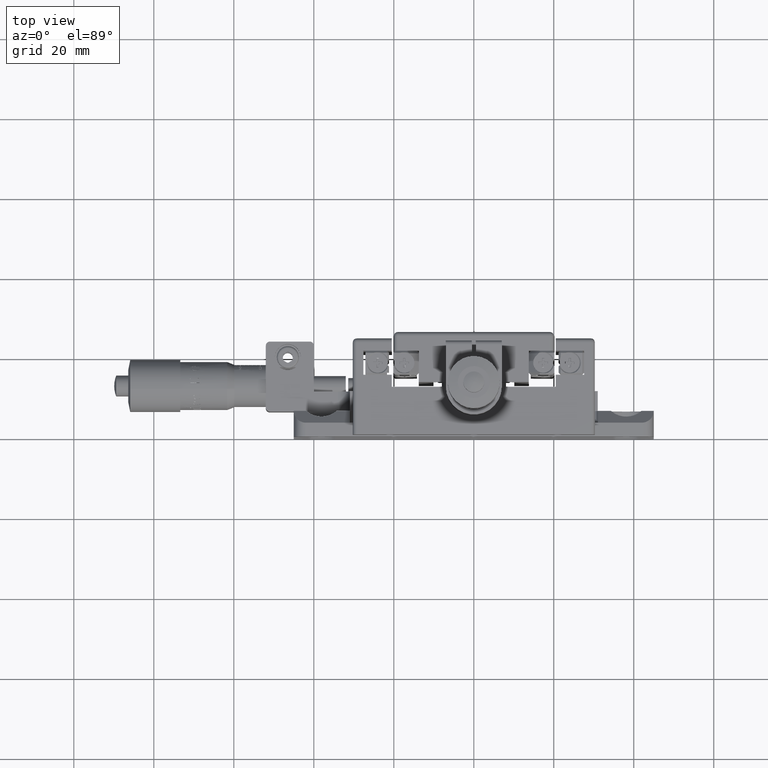
[diagram: clean part render]
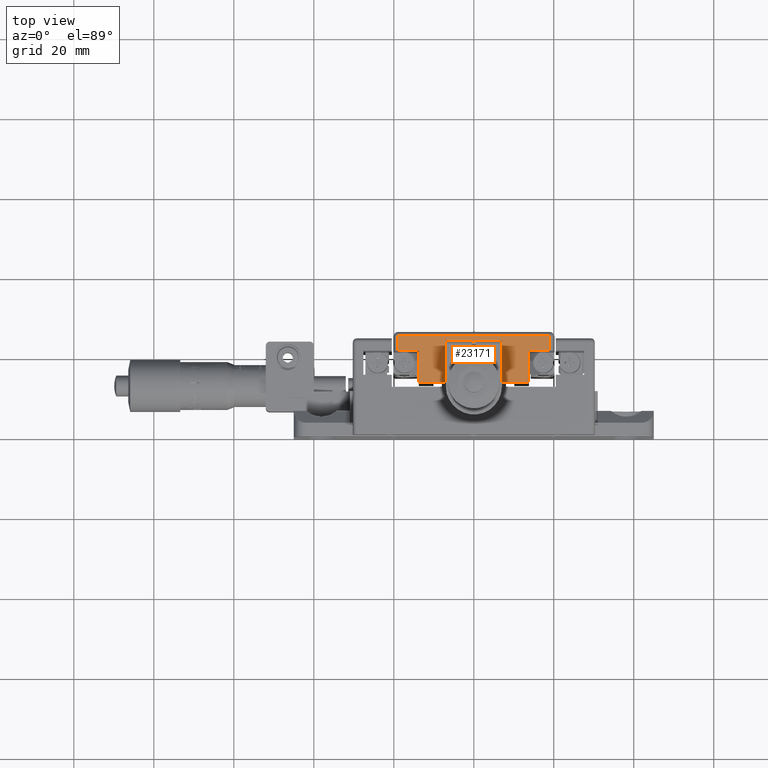
[diagram: same view with one face highlighted and labeled with its STEP entity id]
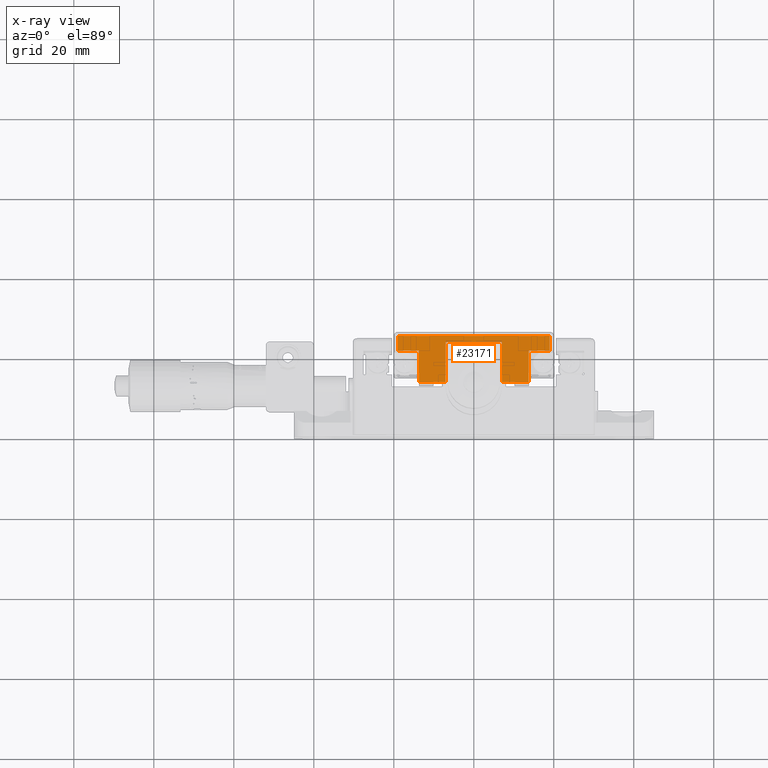
[diagram: x-ray of the same camera — body ghosted, the highlighted face saturated]
A machine part, top view. The second image highlights one B-rep face of the part: STEP entity #23171.
The next image is the same camera in x-ray: the body ghosted, the highlighted face saturated — about 2% of this face is hidden behind the body in this view.
In plain terms, the highlighted planar face has unit normal (-0, 0, 1).
Its self-contained STEP definition (entity closure, byte-faithful):
#327 = EDGE_CURVE ( 'NONE', #64005, #33547, #25366, .T. ) ;
#1150 = CARTESIAN_POINT ( 'NONE',  ( 13.74999999999855900, 13.29999999999909100, 29.99999999999989300 ) ) ;
#2035 = EDGE_CURVE ( 'NONE', #18347, #7997, #43932, .T. ) ;
#2595 = DIRECTION ( 'NONE',  ( -3.451185471037632100E-015, 1.000000000000000000, -2.538117285788525000E-016 ) ) ;
#3623 = VECTOR ( 'NONE', #54645, 1000.000000000000000 ) ;
#3783 = VECTOR ( 'NONE', #15656, 1000.000000000000000 ) ;
#4036 = VERTEX_POINT ( 'NONE', #44788 ) ;
#5000 = CARTESIAN_POINT ( 'NONE',  ( 18.99999999999843700, 24.79999999999913400, 29.99999999999989300 ) ) ;
#5576 = EDGE_CURVE ( 'NONE', #36141, #13899, #21296, .T. ) ;
#6940 = LINE ( 'NONE', #45011, #61727 ) ;
#7245 = ORIENTED_EDGE ( 'NONE', *, *, #21073, .T. ) ;
#7261 = ORIENTED_EDGE ( 'NONE', *, *, #327, .T. ) ;
#7844 = DIRECTION ( 'NONE',  ( 1.095269239418052400E-014, -1.000000000000000000, 2.538117285788535300E-016 ) ) ;
#7997 = VERTEX_POINT ( 'NONE', #16617 ) ;
#8218 = VECTOR ( 'NONE', #63855, 1000.000000000000000 ) ;
#8715 = LINE ( 'NONE', #12728, #36890 ) ;
#8832 = VECTOR ( 'NONE', #53051, 1000.000000000000000 ) ;
#10348 = DIRECTION ( 'NONE',  ( -1.000000000000000000, -1.559082724034155700E-014, -1.387778780781367000E-016 ) ) ;
#11009 = ORIENTED_EDGE ( 'NONE', *, *, #65927, .T. ) ;
#11054 = EDGE_CURVE ( 'NONE', #16220, #43075, #23254, .T. ) ;
#12165 = CARTESIAN_POINT ( 'NONE',  ( 6.999999999998401300, 23.29999999999894600, 29.99999999999989000 ) ) ;
#12728 = CARTESIAN_POINT ( 'NONE',  ( -7.000000000001419300, 11.79999999999872500, 29.99999999999989300 ) ) ;
#12920 = DIRECTION ( 'NONE',  ( -1.000000000000000000, -1.633876696219429300E-014, -1.387778780781364800E-016 ) ) ;
#13733 = EDGE_CURVE ( 'NONE', #16220, #54411, #41518, .T. ) ;
#13899 = VERTEX_POINT ( 'NONE', #59533 ) ;
#14229 = VERTEX_POINT ( 'NONE', #25616 ) ;
#14321 = EDGE_LOOP ( 'NONE', ( #17358, #66578, #7261, #18761, #7245, #21005, #51306, #42517, #48671, #36157, #37001, #11009 ) ) ;
#14738 = CARTESIAN_POINT ( 'NONE',  ( 6.999999999998401300, 23.29999999999894600, 29.99999999999989000 ) ) ;
#15656 = DIRECTION ( 'NONE',  ( -1.608593511242098500E-014, 1.000000000000000000, -2.538117285788542200E-016 ) ) ;
#15927 = AXIS2_PLACEMENT_3D ( 'NONE', #5000, #42042, #10348 ) ;
#16220 = VERTEX_POINT ( 'NONE', #19247 ) ;
#16504 = EDGE_CURVE ( 'NONE', #43075, #52046, #17744, .T. ) ;
#16617 = CARTESIAN_POINT ( 'NONE',  ( 18.99999999999844400, 21.09999999999912000, 29.99999999999989300 ) ) ;
#16671 = CARTESIAN_POINT ( 'NONE',  ( 19.99999999999844700, 21.09999999999913500, 29.99999999999989300 ) ) ;
#17358 = ORIENTED_EDGE ( 'NONE', *, *, #2035, .T. ) ;
#17744 = LINE ( 'NONE', #12165, #3623 ) ;
#18347 = VERTEX_POINT ( 'NONE', #68663 ) ;
#18761 = ORIENTED_EDGE ( 'NONE', *, *, #62598, .T. ) ;
#19247 = CARTESIAN_POINT ( 'NONE',  ( 6.999999999998556700, 13.29999999999897000, 29.99999999999989300 ) ) ;
#19674 = LINE ( 'NONE', #29492, #60290 ) ;
#21005 = ORIENTED_EDGE ( 'NONE', *, *, #36640, .T. ) ;
#21073 = EDGE_CURVE ( 'NONE', #4036, #14229, #22364, .T. ) ;
#21296 = LINE ( 'NONE', #47662, #8832 ) ;
#22364 = LINE ( 'NONE', #30665, #8218 ) ;
#22762 = FACE_OUTER_BOUND ( 'NONE', #14321, .T. ) ;
#23171 = ADVANCED_FACE ( 'NONE', ( #22762 ), #36051, .T. ) ;
#23254 = LINE ( 'NONE', #39500, #63911 ) ;
#25366 = LINE ( 'NONE', #52457, #62672 ) ;
#25616 = CARTESIAN_POINT ( 'NONE',  ( -13.75000000000156500, 21.09999999999860500, 29.99999999999989000 ) ) ;
#26394 = CARTESIAN_POINT ( 'NONE',  ( 13.74999999999855900, 13.29999999999909100, 29.99999999999989300 ) ) ;
#28201 = CARTESIAN_POINT ( 'NONE',  ( -13.75000000000144200, 13.29999999999860400, 29.99999999999989000 ) ) ;
#28831 = CARTESIAN_POINT ( 'NONE',  ( -19.00000000000162400, 24.79999999999851600, 29.99999999999988600 ) ) ;
#29141 = VECTOR ( 'NONE', #31653, 1000.000000000000000 ) ;
#29492 = CARTESIAN_POINT ( 'NONE',  ( -13.75000000000144200, 13.29999999999860400, 29.99999999999989000 ) ) ;
#29873 = VECTOR ( 'NONE', #59116, 1000.000000000000000 ) ;
#30444 = VECTOR ( 'NONE', #7844, 1000.000000000000000 ) ;
#30665 = CARTESIAN_POINT ( 'NONE',  ( -13.75000000000156500, 21.09999999999860500, 29.99999999999989000 ) ) ;
#31653 = DIRECTION ( 'NONE',  ( 1.000000000000000000, 1.767249541151372500E-014, 1.387778780781361600E-016 ) ) ;
#31814 = CARTESIAN_POINT ( 'NONE',  ( 13.74999999999855900, 13.29999999999909100, 29.99999999999989300 ) ) ;
#33547 = VERTEX_POINT ( 'NONE', #28831 ) ;
#34782 = DIRECTION ( 'NONE',  ( 1.564113422114487800E-014, -1.000000000000000000, 2.538117285788541700E-016 ) ) ;
#35754 = CARTESIAN_POINT ( 'NONE',  ( -7.000000000001598700, 23.29999999999872900, 29.99999999999989000 ) ) ;
#36051 = PLANE ( 'NONE',  #15927 ) ;
#36141 = VERTEX_POINT ( 'NONE', #28201 ) ;
#36157 = ORIENTED_EDGE ( 'NONE', *, *, #11054, .F. ) ;
#36640 = EDGE_CURVE ( 'NONE', #14229, #36141, #19674, .T. ) ;
#36890 = VECTOR ( 'NONE', #49845, 1000.000000000000000 ) ;
#37001 = ORIENTED_EDGE ( 'NONE', *, *, #13733, .T. ) ;
#39500 = CARTESIAN_POINT ( 'NONE',  ( 6.999999999998581600, 11.79999999999894400, 29.99999999999989300 ) ) ;
#40622 = EDGE_CURVE ( 'NONE', #7997, #64005, #6940, .T. ) ;
#41518 = LINE ( 'NONE', #26394, #29141 ) ;
#42042 = DIRECTION ( 'NONE',  ( -1.387778780781410400E-016, 2.775557561562865700E-016, 1.000000000000000000 ) ) ;
#42517 = ORIENTED_EDGE ( 'NONE', *, *, #66544, .F. ) ;
#43075 = VERTEX_POINT ( 'NONE', #14738 ) ;
#43932 = LINE ( 'NONE', #16671, #29873 ) ;
#44788 = CARTESIAN_POINT ( 'NONE',  ( -19.00000000000158500, 21.09999999999852300, 29.99999999999989000 ) ) ;
#44869 = DIRECTION ( 'NONE',  ( -1.564113422114487800E-014, 1.000000000000000000, -2.538117285788541700E-016 ) ) ;
#45011 = CARTESIAN_POINT ( 'NONE',  ( 18.99999999999843300, 24.79999999999913400, 29.99999999999989300 ) ) ;
#46067 = LINE ( 'NONE', #31814, #3783 ) ;
#47662 = CARTESIAN_POINT ( 'NONE',  ( 13.74999999999855900, 13.29999999999909100, 29.99999999999989300 ) ) ;
#48671 = ORIENTED_EDGE ( 'NONE', *, *, #16504, .F. ) ;
#49845 = DIRECTION ( 'NONE',  ( 1.564113422114487800E-014, -1.000000000000000000, 2.538117285788541700E-016 ) ) ;
#50058 = CARTESIAN_POINT ( 'NONE',  ( -19.00000000000161600, 24.79999999999871800, 29.99999999999988600 ) ) ;
#51306 = ORIENTED_EDGE ( 'NONE', *, *, #5576, .T. ) ;
#52046 = VERTEX_POINT ( 'NONE', #35754 ) ;
#52457 = CARTESIAN_POINT ( 'NONE',  ( 18.99999999999843700, 24.79999999999913400, 29.99999999999989300 ) ) ;
#53051 = DIRECTION ( 'NONE',  ( 1.000000000000000000, 1.767249541151372500E-014, 1.387778780781361600E-016 ) ) ;
#54411 = VERTEX_POINT ( 'NONE', #1150 ) ;
#54645 = DIRECTION ( 'NONE',  ( -1.000000000000000000, -1.559082724034155700E-014, -1.387778780781367000E-016 ) ) ;
#59116 = DIRECTION ( 'NONE',  ( 1.000000000000000000, 1.559082724034155700E-014, 1.387778780781367000E-016 ) ) ;
#59533 = CARTESIAN_POINT ( 'NONE',  ( -7.000000000001445100, 13.29999999999872400, 29.99999999999989300 ) ) ;
#60290 = VECTOR ( 'NONE', #34782, 1000.000000000000000 ) ;
#60352 = LINE ( 'NONE', #50058, #30444 ) ;
#61229 = CARTESIAN_POINT ( 'NONE',  ( 18.99999999999843700, 24.79999999999913400, 29.99999999999989300 ) ) ;
#61727 = VECTOR ( 'NONE', #2595, 1000.000000000000000 ) ;
#62598 = EDGE_CURVE ( 'NONE', #33547, #4036, #60352, .T. ) ;
#62672 = VECTOR ( 'NONE', #12920, 1000.000000000000000 ) ;
#63855 = DIRECTION ( 'NONE',  ( 1.000000000000000000, 1.586838299649784600E-014, 1.387778780781366000E-016 ) ) ;
#63911 = VECTOR ( 'NONE', #44869, 1000.000000000000000 ) ;
#64005 = VERTEX_POINT ( 'NONE', #61229 ) ;
#65927 = EDGE_CURVE ( 'NONE', #54411, #18347, #46067, .T. ) ;
#66544 = EDGE_CURVE ( 'NONE', #52046, #13899, #8715, .T. ) ;
#66578 = ORIENTED_EDGE ( 'NONE', *, *, #40622, .T. ) ;
#68663 = CARTESIAN_POINT ( 'NONE',  ( 13.74999999999843100, 21.09999999999903500, 29.99999999999989300 ) ) ;